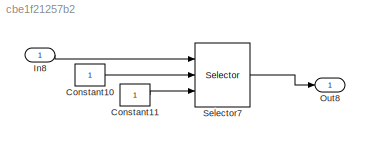
MODEL slx_cbe1f21257b2
KIND model
CONFIG AbsTol = auto
CONFIG EnableMultiTasking = on
CONFIG FixedStep = 0.1
CONFIG MaxStep = 1
CONFIG MinStep = auto
CONFIG RelTol = 1e-3
CONFIG SampleTimeConstraint = Unconstrained
CONFIG Solver = FixedStepAuto
CONFIG SolverName = FixedStepAuto
CONFIG StartTime = 0.0
CONFIG StopTime = 0
BLOCK [Constant] Constant10
BLOCK [Constant] Constant11
BLOCK [Inport] In8
  IconDisplay = Port number
  PortDimensions = [2 3]
BLOCK [Outport] Out8
  IconDisplay = Port number
BLOCK [Selector] Selector7
  IndexOptions = Index vector (port),Index vector (port)
  Indices = 0,1
  InputPortWidth = 3
  NumberOfDimensions = 2
  OutputSizes = 1,2
  Ports = [3, 1]
LINE Constant10:1 -> Selector7:2
LINE Constant11:1 -> Selector7:3
LINE In8:1 -> Selector7:1
LINE Selector7:1 -> Out8:1
